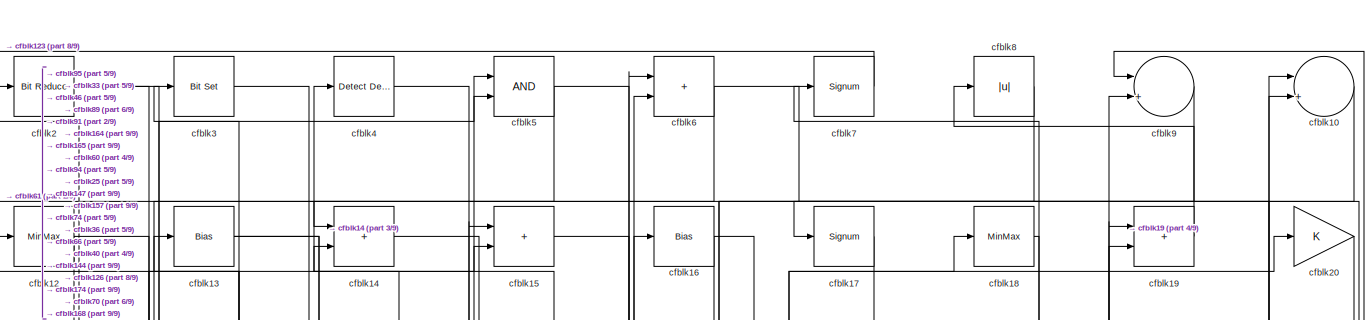
[diagram: root canvas - part 1/9, full width, top band]
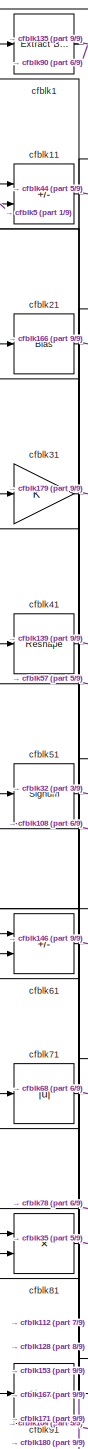
[diagram: root canvas - part 2/9, top left region]
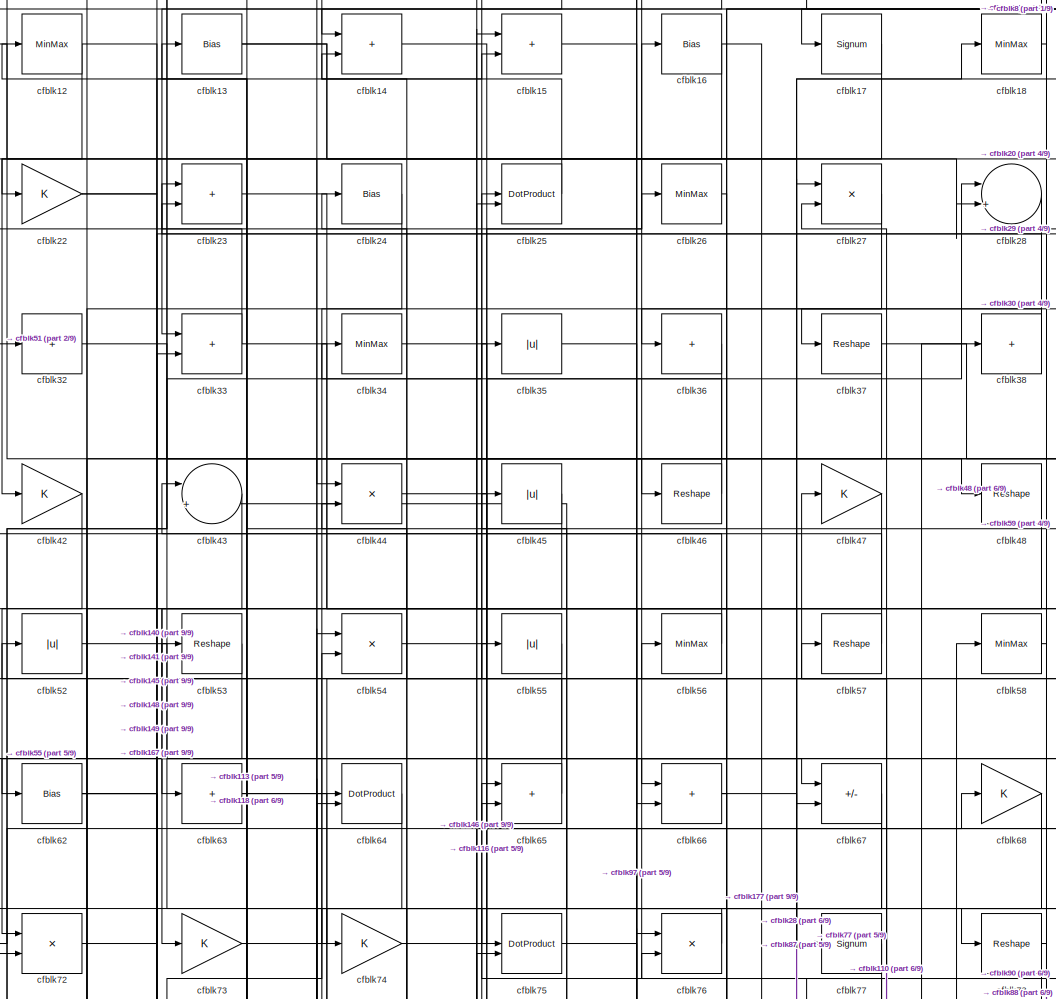
[diagram: root canvas - part 3/9, top center region]
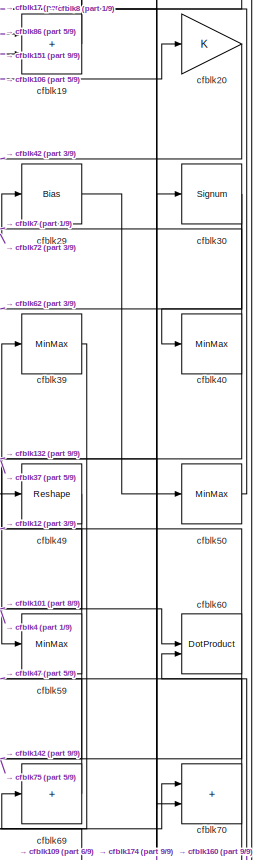
[diagram: root canvas - part 4/9, top right region]
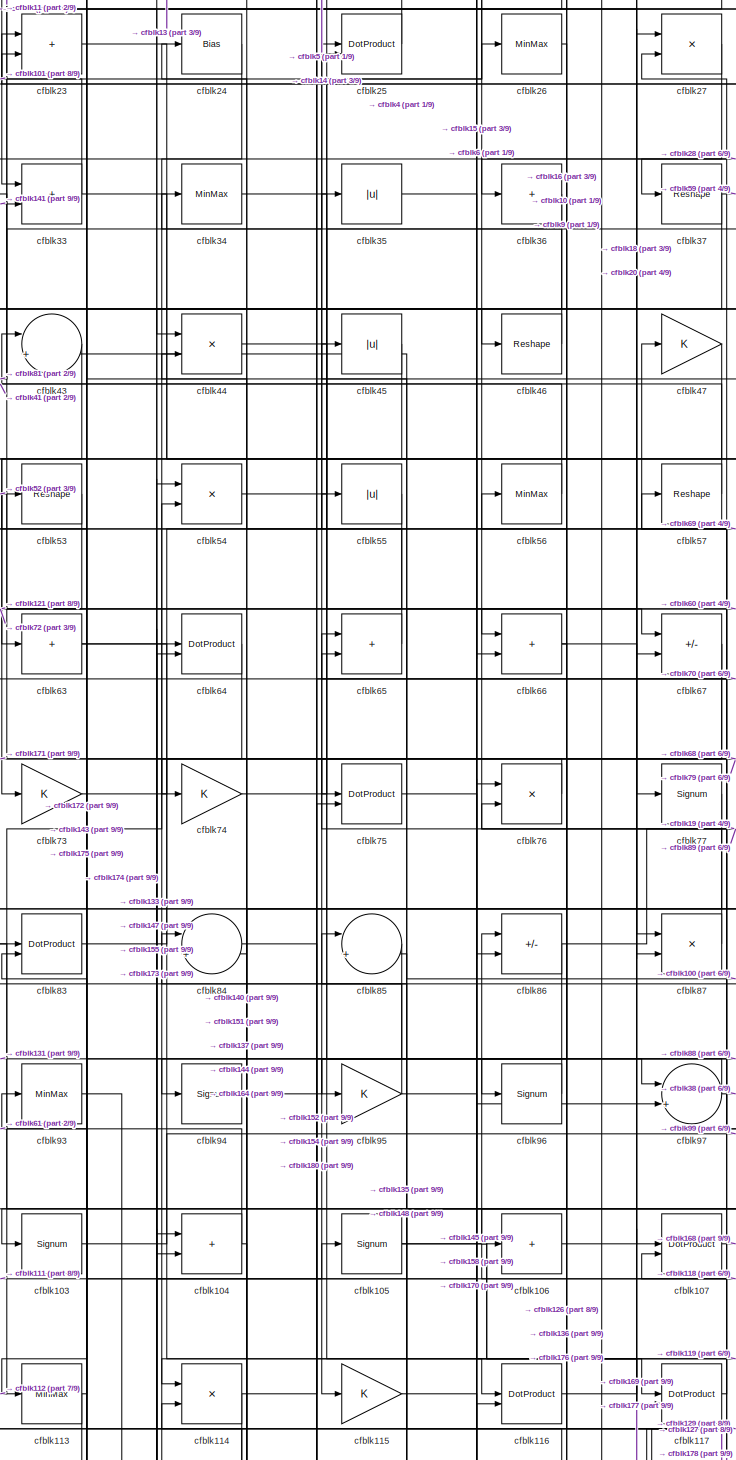
[diagram: root canvas - part 5/9, central region]
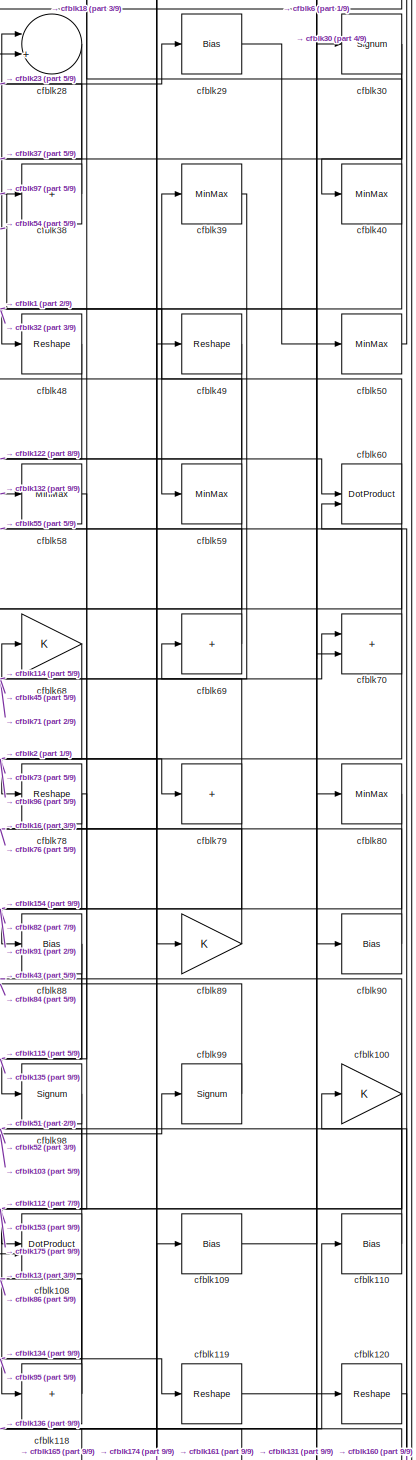
[diagram: root canvas - part 6/9, middle right region]
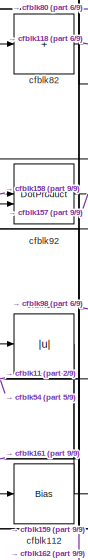
[diagram: root canvas - part 7/9, middle left region]
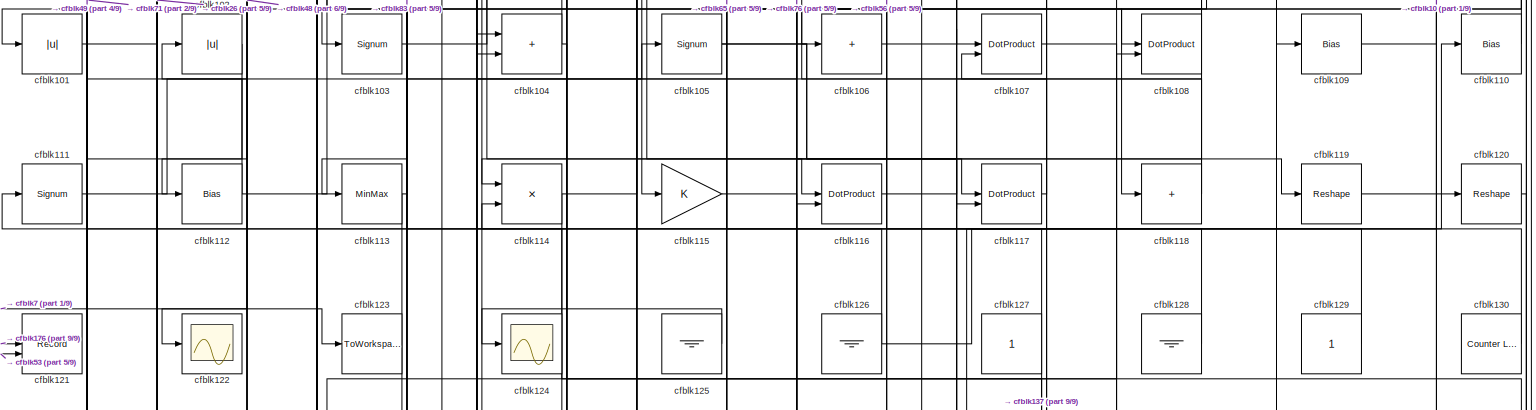
[diagram: root canvas - part 8/9, full width, middle band]
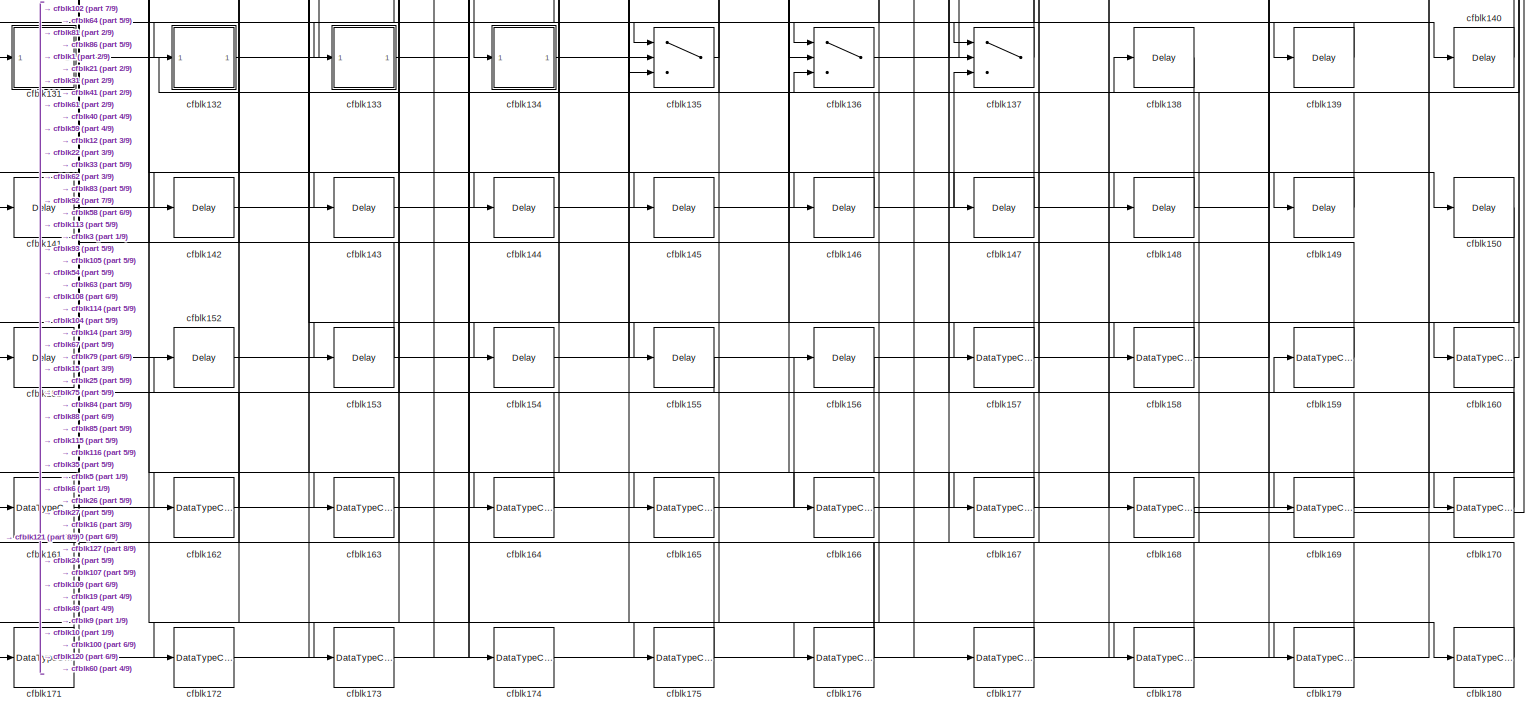
[diagram: root canvas - part 9/9, full width, bottom band]
MODEL slx_423c228bf753
KIND model
CONFIG AbsTol = auto
CONFIG EnableMultiTasking = off
CONFIG FixedStep = auto
CONFIG MaxStep = auto
CONFIG MinStep = auto
CONFIG RelTol = 1e-3
CONFIG SampleTimeConstraint = Unconstrained
CONFIG SolverName = VariableStepAuto
CONFIG StartTime = 0.0
CONFIG StopTime = 10.0
BLOCK [Reference] cfblk1  REF=simulink/Logic and Bit
Operations/Extract Bits
  LibrarySourceBlock = hdlsllib/Logic and Bit\nOperations/Extract Bits
  SourceBlock = simulink/Logic and Bit\nOperations/Extract Bits
  SourceType = Extract Bits
BLOCK [Sum] cfblk10
  Inputs = |++
BLOCK [Gain] cfblk100
BLOCK [Abs] cfblk101
  SaturateOnIntegerOverflow = off
BLOCK [Abs] cfblk102
  SaturateOnIntegerOverflow = off
BLOCK [Signum] cfblk103
BLOCK [Sum] cfblk104
  IconShape = rectangular
BLOCK [Signum] cfblk105
BLOCK [Sum] cfblk106
  IconShape = rectangular
  Inputs = +
BLOCK [DotProduct] cfblk107
  OutDataTypeStr = Inherit: Inherit via internal rule
BLOCK [DotProduct] cfblk108
  OutDataTypeStr = Inherit: Inherit via internal rule
BLOCK [Bias] cfblk109
  Bias = 0.0
  SaturateOnIntegerOverflow = off
BLOCK [Sum] cfblk11
  IconShape = rectangular
  Inputs = +-
BLOCK [Bias] cfblk110
  Bias = 0.0
  SaturateOnIntegerOverflow = off
BLOCK [Signum] cfblk111
BLOCK [Bias] cfblk112
  Bias = 0.0
  SaturateOnIntegerOverflow = off
BLOCK [MinMax] cfblk113
BLOCK [Product] cfblk114
  Inputs = */
  RndMeth = Zero
  SaturateOnIntegerOverflow = on
BLOCK [Gain] cfblk115
BLOCK [DotProduct] cfblk116
  OutDataTypeStr = Inherit: Inherit via internal rule
BLOCK [DotProduct] cfblk117
  OutDataTypeStr = Inherit: Inherit via internal rule
BLOCK [Sum] cfblk118
  IconShape = rectangular
  Inputs = +
BLOCK [Reshape] cfblk119
BLOCK [MinMax] cfblk12
BLOCK [Reshape] cfblk120
BLOCK [Record] cfblk121
  CompatibilityTag = XY
  FileSettingsInternal = {"entries":[{"content":{"excelSettings":{"content":{},"type":"Streamout.ExcelSettings"}},"type":"Streamout.FileSettingStorage","uuid":""}],"packageUris":["http:\/\/schema.mathworks.com\/mf0\/streamout_blocks\/R2020a"],"version":"1.0"}
  Layout = [1 1]
  SignalsInternal = {"entries":[{"content":{"signals":[{"content":{"blockPath":[],"dimensions":[1],"domain":"","lineColor":"#a2142f","plots":[1],"port":1,"signalID":1564,"signalName":"XY Graph:1"},"type":"RecordBlkView.Signal","uuid":""},{"content":{"blockPath":[],"dimensions":[1],"domain":"","lineColor":"#139fff","plots":[1],"port":2,"signalID":1567,"signalName":"XY Graph:2"},"type":"RecordBlkView.Signal","uuid":""}...<+146ch>
  VisualizationBindings = {"xyplotplugin":{"info":[{"series":[{"bindingParametersList":[{"parameter":"X-Axis","signalID":1564,"signalName":"XY Graph:1"},{"parameter":"Y-Axis","signalID":1567,"signalName":"XY Graph:2"}],"seriesID":27336}],"subplotID":1}]}}
  st = -1
BLOCK [Scope] cfblk122
  Floating = off
  NumInputPorts = 1
  ScopeSpecificationString = Simulink.scopes.TimeScopeBlockCfg('CurrentConfiguration', extmgr.ConfigurationSet(extmgr.Configuration('Core','General UI',true),extmgr.Configuration('Core','Source UI',true),extmgr.Configuration('Sources','WiredSimulink',true,'DataLoggingVariableName','ScopeData2','DataLoggingSaveFormat','Array','DataLoggingLimitDataPoints',true,'DataLoggingDecimation','1'),extmgr.Configuration('Visuals','Time Do...<+868ch>
BLOCK [ToWorkspace] cfblk123
  MaxDataPoints = inf
  SampleTime = -1
  SaveFormat = Timeseries
  VariableName = simout
BLOCK [Scope] cfblk124
  Floating = off
  NumInputPorts = 1
  ScopeSpecificationString = Simulink.scopes.TimeScopeBlockCfg('CurrentConfiguration', extmgr.ConfigurationSet(extmgr.Configuration('Core','General UI',true),extmgr.Configuration('Core','Source UI',true),extmgr.Configuration('Sources','WiredSimulink',true,'DataLoggingVariableName','ScopeData2','DataLoggingSaveFormat','Array','DataLoggingLimitDataPoints',true,'DataLoggingDecimation','1'),extmgr.Configuration('Visuals','Time Do...<+868ch>
BLOCK [Ground] cfblk125
BLOCK [Ground] cfblk126
BLOCK [Constant] cfblk127
  SampleTime = -1
BLOCK [Ground] cfblk128
BLOCK [Constant] cfblk129
  SampleTime = -1
BLOCK [Bias] cfblk13
  Bias = 0.0
  SaturateOnIntegerOverflow = off
BLOCK [Reference] cfblk130  REF=hdlsllib/Sources/Counter
Limited
  SourceBlock = hdlsllib/Sources/Counter\nLimited
  SourceType = Counter Limited
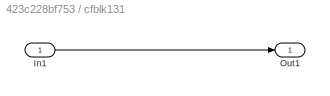
BLOCK [SubSystem] cfblk131
  LibrarySourceBlock = hdlsllib/Ports &\nSubsystems/Subsystem
BLOCK [Inport] cfblk131/In1
BLOCK [Outport] cfblk131/Out1
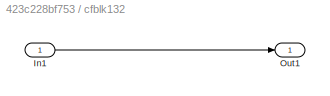
BLOCK [SubSystem] cfblk132
  LibrarySourceBlock = hdlsllib/Ports &\nSubsystems/Subsystem
BLOCK [Inport] cfblk132/In1
BLOCK [Outport] cfblk132/Out1
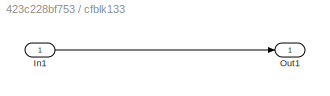
BLOCK [SubSystem] cfblk133
  LibrarySourceBlock = hdlsllib/Ports &\nSubsystems/Subsystem
BLOCK [Inport] cfblk133/In1
BLOCK [Outport] cfblk133/Out1
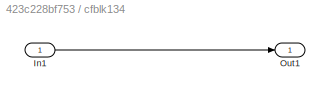
BLOCK [SubSystem] cfblk134
  LibrarySourceBlock = hdlsllib/Ports &\nSubsystems/Subsystem
BLOCK [Inport] cfblk134/In1
BLOCK [Outport] cfblk134/Out1
BLOCK [Switch] cfblk135
  InputSameDT = off
  SaturateOnIntegerOverflow = off
BLOCK [Switch] cfblk136
  InputSameDT = off
  SaturateOnIntegerOverflow = off
BLOCK [Switch] cfblk137
  InputSameDT = off
  SaturateOnIntegerOverflow = off
BLOCK [Delay] cfblk138
  InputPortMap = u0
  SampleTime = 1
BLOCK [Delay] cfblk139
  InputPortMap = u0
  SampleTime = 1
BLOCK [Sum] cfblk14
  IconShape = rectangular
BLOCK [Delay] cfblk140
  InputPortMap = u0
  SampleTime = 1
BLOCK [Delay] cfblk141
  InputPortMap = u0
  SampleTime = 1
BLOCK [Delay] cfblk142
  InputPortMap = u0
  SampleTime = 1
BLOCK [Delay] cfblk143
  InputPortMap = u0
  SampleTime = 1
BLOCK [Delay] cfblk144
  InputPortMap = u0
  SampleTime = 1
BLOCK [Delay] cfblk145
  InputPortMap = u0
  SampleTime = 1
BLOCK [Delay] cfblk146
  InputPortMap = u0
  SampleTime = 1
BLOCK [Delay] cfblk147
  InputPortMap = u0
  SampleTime = 1
BLOCK [Delay] cfblk148
  InputPortMap = u0
  SampleTime = 1
BLOCK [Delay] cfblk149
  InputPortMap = u0
  SampleTime = 1
BLOCK [Sum] cfblk15
  IconShape = rectangular
BLOCK [Delay] cfblk150
  InputPortMap = u0
  SampleTime = 1
BLOCK [Delay] cfblk151
  InputPortMap = u0
  SampleTime = 1
BLOCK [Delay] cfblk152
  InputPortMap = u0
  SampleTime = 1
BLOCK [Delay] cfblk153
  InputPortMap = u0
  SampleTime = 1
BLOCK [Delay] cfblk154
  InputPortMap = u0
  SampleTime = 1
BLOCK [Delay] cfblk155
  InputPortMap = u0
  SampleTime = 1
BLOCK [Delay] cfblk156
  InputPortMap = u0
  SampleTime = 1
BLOCK [DataTypeConversion] cfblk157
  OutDataTypeStr = uint8
  RndMeth = Floor
  SaturateOnIntegerOverflow = off
BLOCK [DataTypeConversion] cfblk158
  OutDataTypeStr = uint8
  RndMeth = Floor
  SaturateOnIntegerOverflow = off
BLOCK [DataTypeConversion] cfblk159
  OutDataTypeStr = uint8
  RndMeth = Floor
  SaturateOnIntegerOverflow = off
BLOCK [Bias] cfblk16
  Bias = 0.0
  SaturateOnIntegerOverflow = off
BLOCK [DataTypeConversion] cfblk160
  RndMeth = Floor
  SaturateOnIntegerOverflow = off
BLOCK [DataTypeConversion] cfblk161
  OutDataTypeStr = uint8
  RndMeth = Floor
  SaturateOnIntegerOverflow = off
BLOCK [DataTypeConversion] cfblk162
  OutDataTypeStr = uint8
  RndMeth = Floor
  SaturateOnIntegerOverflow = off
BLOCK [DataTypeConversion] cfblk163
  OutDataTypeStr = uint8
  RndMeth = Floor
  SaturateOnIntegerOverflow = off
BLOCK [DataTypeConversion] cfblk164
  OutDataTypeStr = boolean
  RndMeth = Floor
  SaturateOnIntegerOverflow = off
BLOCK [DataTypeConversion] cfblk165
  OutDataTypeStr = uint8
  RndMeth = Floor
  SaturateOnIntegerOverflow = off
BLOCK [DataTypeConversion] cfblk166
  OutDataTypeStr = uint8
  RndMeth = Floor
  SaturateOnIntegerOverflow = off
BLOCK [DataTypeConversion] cfblk167
  OutDataTypeStr = uint8
  RndMeth = Floor
  SaturateOnIntegerOverflow = off
BLOCK [DataTypeConversion] cfblk168
  OutDataTypeStr = uint8
  RndMeth = Floor
  SaturateOnIntegerOverflow = off
BLOCK [DataTypeConversion] cfblk169
  OutDataTypeStr = uint8
  RndMeth = Floor
  SaturateOnIntegerOverflow = off
BLOCK [Signum] cfblk17
BLOCK [DataTypeConversion] cfblk170
  OutDataTypeStr = uint8
  RndMeth = Floor
  SaturateOnIntegerOverflow = off
BLOCK [DataTypeConversion] cfblk171
  RndMeth = Floor
  SaturateOnIntegerOverflow = off
BLOCK [DataTypeConversion] cfblk172
  OutDataTypeStr = uint8
  RndMeth = Floor
  SaturateOnIntegerOverflow = off
BLOCK [DataTypeConversion] cfblk173
  OutDataTypeStr = uint8
  RndMeth = Floor
  SaturateOnIntegerOverflow = off
BLOCK [DataTypeConversion] cfblk174
  RndMeth = Floor
  SaturateOnIntegerOverflow = off
BLOCK [DataTypeConversion] cfblk175
  OutDataTypeStr = uint8
  RndMeth = Floor
  SaturateOnIntegerOverflow = off
BLOCK [DataTypeConversion] cfblk176
  RndMeth = Floor
  SaturateOnIntegerOverflow = off
BLOCK [DataTypeConversion] cfblk177
  OutDataTypeStr = uint8
  RndMeth = Floor
  SaturateOnIntegerOverflow = off
BLOCK [DataTypeConversion] cfblk178
  OutDataTypeStr = uint8
  RndMeth = Floor
  SaturateOnIntegerOverflow = off
BLOCK [DataTypeConversion] cfblk179
  OutDataTypeStr = uint8
  RndMeth = Floor
  SaturateOnIntegerOverflow = off
BLOCK [MinMax] cfblk18
BLOCK [DataTypeConversion] cfblk180
  OutDataTypeStr = uint8
  RndMeth = Floor
  SaturateOnIntegerOverflow = off
BLOCK [Sum] cfblk19
  IconShape = rectangular
BLOCK [Reference] cfblk2  REF=hdlsllib/Logic and Bit
Operations/Bit Reduce
  SourceBlock = hdlsllib/Logic and Bit\nOperations/Bit Reduce
  SourceType = Bit Reduce
BLOCK [Gain] cfblk20
BLOCK [Bias] cfblk21
  Bias = 0.0
  SaturateOnIntegerOverflow = off
BLOCK [Gain] cfblk22
BLOCK [Sum] cfblk23
  IconShape = rectangular
BLOCK [Bias] cfblk24
  Bias = 0.0
  SaturateOnIntegerOverflow = off
BLOCK [DotProduct] cfblk25
  OutDataTypeStr = Inherit: Inherit via internal rule
BLOCK [MinMax] cfblk26
BLOCK [Product] cfblk27
  Inputs = */
  RndMeth = Zero
  SaturateOnIntegerOverflow = on
BLOCK [Sum] cfblk28
  Inputs = |++
BLOCK [Bias] cfblk29
  Bias = 0.0
  SaturateOnIntegerOverflow = off
BLOCK [Reference] cfblk3  REF=simulink/Logic and Bit
Operations/Bit Set
  LibrarySourceBlock = hdlsllib/Logic and Bit\nOperations/Bit Set
  SourceBlock = simulink/Logic and Bit\nOperations/Bit Set
  SourceType = Bit Set
BLOCK [Signum] cfblk30
BLOCK [Gain] cfblk31
BLOCK [Sum] cfblk32
  IconShape = rectangular
  Inputs = +
BLOCK [Sum] cfblk33
  IconShape = rectangular
BLOCK [MinMax] cfblk34
BLOCK [Abs] cfblk35
  SaturateOnIntegerOverflow = off
BLOCK [Sum] cfblk36
  IconShape = rectangular
  Inputs = +
BLOCK [Reshape] cfblk37
BLOCK [Sum] cfblk38
  IconShape = rectangular
  Inputs = +
BLOCK [MinMax] cfblk39
BLOCK [Reference] cfblk4  REF=simulink/Logic and Bit
Operations/Detect
Decrease
  LibrarySourceBlock = hdlsllib/Logic and Bit\nOperations/Detect\nDecrease
  SourceBlock = simulink/Logic and Bit\nOperations/Detect\nDecrease
  SourceType = Detect Decrease
BLOCK [MinMax] cfblk40
BLOCK [Reshape] cfblk41
BLOCK [Gain] cfblk42
BLOCK [Sum] cfblk43
  Inputs = |++
BLOCK [Product] cfblk44
  Inputs = */
  RndMeth = Zero
  SaturateOnIntegerOverflow = on
BLOCK [Abs] cfblk45
  SaturateOnIntegerOverflow = off
BLOCK [Reshape] cfblk46
BLOCK [Gain] cfblk47
BLOCK [Reshape] cfblk48
BLOCK [Reshape] cfblk49
BLOCK [Logic] cfblk5
  AllPortsSameDT = off
  OutDataTypeStr = boolean
BLOCK [MinMax] cfblk50
BLOCK [Signum] cfblk51
BLOCK [Abs] cfblk52
  SaturateOnIntegerOverflow = off
BLOCK [Reshape] cfblk53
BLOCK [Product] cfblk54
  Inputs = */
  RndMeth = Zero
  SaturateOnIntegerOverflow = on
BLOCK [Abs] cfblk55
  SaturateOnIntegerOverflow = off
BLOCK [MinMax] cfblk56
BLOCK [Reshape] cfblk57
BLOCK [MinMax] cfblk58
BLOCK [MinMax] cfblk59
BLOCK [Sum] cfblk6
  IconShape = rectangular
BLOCK [DotProduct] cfblk60
  OutDataTypeStr = Inherit: Inherit via internal rule
BLOCK [Sum] cfblk61
  IconShape = rectangular
  Inputs = +-
BLOCK [Bias] cfblk62
  Bias = 0.0
  SaturateOnIntegerOverflow = off
BLOCK [Sum] cfblk63
  IconShape = rectangular
  Inputs = +
BLOCK [DotProduct] cfblk64
  OutDataTypeStr = Inherit: Inherit via internal rule
BLOCK [Sum] cfblk65
  IconShape = rectangular
BLOCK [Sum] cfblk66
  IconShape = rectangular
BLOCK [Sum] cfblk67
  IconShape = rectangular
  Inputs = +-
BLOCK [Gain] cfblk68
BLOCK [Sum] cfblk69
  IconShape = rectangular
  Inputs = +
BLOCK [Signum] cfblk7
BLOCK [Sum] cfblk70
  IconShape = rectangular
BLOCK [Abs] cfblk71
  SaturateOnIntegerOverflow = off
BLOCK [Product] cfblk72
  Inputs = */
  RndMeth = Zero
  SaturateOnIntegerOverflow = on
BLOCK [Gain] cfblk73
BLOCK [Gain] cfblk74
BLOCK [DotProduct] cfblk75
  OutDataTypeStr = Inherit: Inherit via internal rule
BLOCK [Product] cfblk76
  Inputs = */
  RndMeth = Zero
  SaturateOnIntegerOverflow = on
BLOCK [Signum] cfblk77
BLOCK [Reshape] cfblk78
BLOCK [Sum] cfblk79
  IconShape = rectangular
  Inputs = +
BLOCK [Abs] cfblk8
  SaturateOnIntegerOverflow = off
BLOCK [MinMax] cfblk80
BLOCK [Product] cfblk81
  Inputs = */
  RndMeth = Zero
  SaturateOnIntegerOverflow = on
BLOCK [Sum] cfblk82
  IconShape = rectangular
  Inputs = +
BLOCK [DotProduct] cfblk83
  OutDataTypeStr = Inherit: Inherit via internal rule
BLOCK [Sum] cfblk84
  Inputs = |++
BLOCK [Sum] cfblk85
  Inputs = |++
BLOCK [Sum] cfblk86
  IconShape = rectangular
  Inputs = +-
BLOCK [Product] cfblk87
  Inputs = */
  RndMeth = Zero
  SaturateOnIntegerOverflow = on
BLOCK [Bias] cfblk88
  Bias = 0.0
  SaturateOnIntegerOverflow = off
BLOCK [Gain] cfblk89
BLOCK [Sum] cfblk9
  Inputs = |++
BLOCK [Bias] cfblk90
  Bias = 0.0
  SaturateOnIntegerOverflow = off
BLOCK [Signum] cfblk91
BLOCK [DotProduct] cfblk92
  OutDataTypeStr = Inherit: Inherit via internal rule
BLOCK [MinMax] cfblk93
BLOCK [Signum] cfblk94
BLOCK [Gain] cfblk95
BLOCK [Signum] cfblk96
BLOCK [Sum] cfblk97
  Inputs = |++
BLOCK [Signum] cfblk98
BLOCK [Signum] cfblk99
NET cfblk100:1 -> cfblk153:1, cfblk175:1, cfblk43:2
LINE cfblk101:1 -> cfblk26:1
LINE cfblk102:1 -> cfblk161:1
LINE cfblk103:1 -> cfblk99:1
NET cfblk104:1 -> cfblk164:1, cfblk61:2
NET cfblk105:1 -> cfblk117:2, cfblk137:2
LINE cfblk106:1 -> cfblk20:1
LINE cfblk107:1 -> cfblk168:1
NET cfblk108:1 -> cfblk134:1, cfblk51:1
LINE cfblk109:1 -> cfblk30:1
LINE cfblk10:1 -> cfblk36:1
LINE cfblk110:1 -> cfblk52:1
LINE cfblk111:1 -> cfblk76:1
NET cfblk112:1 -> cfblk11:1, cfblk54:2
NET cfblk113:1 -> cfblk172:1, cfblk53:1
NET cfblk114:1 -> cfblk151:1, cfblk70:1
LINE cfblk115:1 -> cfblk136:2
LINE cfblk116:1 -> cfblk18:1
LINE cfblk117:1 -> cfblk57:1
NET cfblk118:1 -> cfblk13:1, cfblk86:1
LINE cfblk119:1 -> cfblk80:1
LINE cfblk11:1 -> cfblk44:1
LINE cfblk120:1 -> cfblk160:1
LINE cfblk125:1 -> cfblk124:1
NET cfblk126:1 -> cfblk10:2, cfblk65:2
NET cfblk127:1 -> cfblk137:1, cfblk83:2
LINE cfblk128:1 -> cfblk71:1
LINE cfblk129:1 -> cfblk56:1
NET cfblk12:1 -> cfblk140:1, cfblk141:1
LINE cfblk130:1 -> cfblk111:1
LINE cfblk131/In1:1 -> cfblk131/Out1:1
LINE cfblk131:1 -> cfblk100:1
LINE cfblk132/In1:1 -> cfblk132/Out1:1
LINE cfblk132:1 -> cfblk58:1
LINE cfblk133/In1:1 -> cfblk133/Out1:1
NET cfblk133:1 -> cfblk105:1, cfblk178:1
LINE cfblk134/In1:1 -> cfblk134/Out1:1
LINE cfblk134:1 -> cfblk150:1
LINE cfblk135:1 -> cfblk85:1
LINE cfblk136:1 -> cfblk110:1
LINE cfblk137:1 -> cfblk24:1
LINE cfblk138:1 -> cfblk136:3
LINE cfblk139:1 -> cfblk135:1
NET cfblk13:1 -> cfblk28:2, cfblk87:2
LINE cfblk140:1 -> cfblk114:2
LINE cfblk141:1 -> cfblk33:2
LINE cfblk142:1 -> cfblk137:3
LINE cfblk143:1 -> cfblk54:1
LINE cfblk144:1 -> cfblk9:2
LINE cfblk145:1 -> cfblk116:2
LINE cfblk146:1 -> cfblk15:1
LINE cfblk147:1 -> cfblk104:1
LINE cfblk148:1 -> cfblk85:2
LINE cfblk149:1 -> cfblk14:2
LINE cfblk14:1 -> cfblk116:1
LINE cfblk150:1 -> cfblk173:1
LINE cfblk151:1 -> cfblk19:2
LINE cfblk152:1 -> cfblk75:2
LINE cfblk153:1 -> cfblk1:1
LINE cfblk154:1 -> cfblk25:2
LINE cfblk155:1 -> cfblk159:1
LINE cfblk156:1 -> cfblk162:1
LINE cfblk157:1 -> cfblk6:1
LINE cfblk158:1 -> cfblk92:1
LINE cfblk159:1 -> cfblk92:2
LINE cfblk15:1 -> cfblk97:2
NET cfblk160:1 -> cfblk163:1, cfblk60:2
LINE cfblk161:1 -> cfblk120:1
LINE cfblk162:1 -> cfblk102:1
LINE cfblk163:1 -> cfblk156:1
LINE cfblk164:1 -> cfblk3:1
LINE cfblk165:1 -> cfblk109:1
LINE cfblk166:1 -> cfblk169:1
LINE cfblk167:1 -> cfblk21:1
LINE cfblk168:1 -> cfblk9:1
LINE cfblk169:1 -> cfblk107:1
NET cfblk16:1 -> cfblk113:1, cfblk177:1
LINE cfblk170:1 -> cfblk107:2
NET cfblk171:1 -> cfblk81:1, cfblk81:2, cfblk83:1
LINE cfblk172:1 -> cfblk64:1
LINE cfblk173:1 -> cfblk64:2
NET cfblk174:1 -> cfblk108:2, cfblk10:1, cfblk49:1
LINE cfblk175:1 -> cfblk93:1
NET cfblk176:1 -> cfblk121:1, cfblk152:1
LINE cfblk177:1 -> cfblk27:1
LINE cfblk178:1 -> cfblk27:2
LINE cfblk179:1 -> cfblk138:1
LINE cfblk17:1 -> cfblk22:1
LINE cfblk180:1 -> cfblk31:1
LINE cfblk18:1 -> cfblk88:1
LINE cfblk19:1 -> cfblk8:1
NET cfblk1:1 -> cfblk135:3, cfblk90:1
LINE cfblk20:1 -> cfblk42:1
LINE cfblk21:1 -> cfblk166:1
NET cfblk22:1 -> cfblk145:1, cfblk15:2
LINE cfblk23:1 -> cfblk67:2
LINE cfblk24:1 -> cfblk114:1
LINE cfblk25:1 -> cfblk4:1
LINE cfblk26:1 -> cfblk136:1
LINE cfblk27:1 -> cfblk176:1
LINE cfblk28:1 -> cfblk37:1
LINE cfblk29:1 -> cfblk50:1
NET cfblk2:1 -> cfblk46:1, cfblk89:1
NET cfblk30:1 -> cfblk40:1, cfblk62:1
LINE cfblk31:1 -> cfblk179:1
LINE cfblk32:1 -> cfblk48:1
NET cfblk33:1 -> cfblk23:2, cfblk86:2
LINE cfblk34:1 -> cfblk97:1
LINE cfblk35:1 -> cfblk170:1
LINE cfblk36:1 -> cfblk103:1
NET cfblk37:1 -> cfblk104:2, cfblk59:1
LINE cfblk38:1 -> cfblk23:1
LINE cfblk39:1 -> cfblk69:1
LINE cfblk3:1 -> cfblk165:1
NET cfblk40:1 -> cfblk132:1, cfblk7:1
LINE cfblk41:1 -> cfblk139:1
LINE cfblk42:1 -> cfblk72:1
LINE cfblk43:1 -> cfblk73:1
LINE cfblk44:1 -> cfblk67:1
LINE cfblk45:1 -> cfblk63:1
LINE cfblk46:1 -> cfblk34:1
LINE cfblk47:1 -> cfblk66:2
LINE cfblk48:1 -> cfblk122:1
LINE cfblk49:1 -> cfblk101:1
LINE cfblk4:1 -> cfblk60:1
LINE cfblk50:1 -> cfblk17:1
LINE cfblk51:1 -> cfblk32:1
LINE cfblk52:1 -> cfblk77:1
LINE cfblk53:1 -> cfblk121:2
LINE cfblk54:1 -> cfblk28:1
LINE cfblk55:1 -> cfblk72:2
LINE cfblk56:1 -> cfblk43:1
LINE cfblk57:1 -> cfblk41:1
LINE cfblk58:1 -> cfblk78:1
NET cfblk59:1 -> cfblk12:1, cfblk142:1
NET cfblk5:1 -> cfblk147:1, cfblk61:1
NET cfblk60:1 -> cfblk39:1, cfblk75:1
LINE cfblk61:1 -> cfblk146:1
NET cfblk62:1 -> cfblk148:1, cfblk149:1, cfblk167:1
NET cfblk63:1 -> cfblk117:1, cfblk155:1
LINE cfblk64:1 -> cfblk171:1
LINE cfblk65:1 -> cfblk44:2
NET cfblk66:1 -> cfblk106:1, cfblk87:1
NET cfblk67:1 -> cfblk143:1, cfblk144:1
LINE cfblk68:1 -> cfblk96:1
LINE cfblk69:1 -> cfblk47:1
NET cfblk6:1 -> cfblk33:1, cfblk70:2
NET cfblk70:1 -> cfblk55:1, cfblk98:1
LINE cfblk71:1 -> cfblk68:1
LINE cfblk72:1 -> cfblk29:1
LINE cfblk73:1 -> cfblk79:1
LINE cfblk74:1 -> cfblk6:2
LINE cfblk75:1 -> cfblk158:1
LINE cfblk76:1 -> cfblk74:1
LINE cfblk77:1 -> cfblk84:2
NET cfblk78:1 -> cfblk108:1, cfblk91:1
NET cfblk79:1 -> cfblk154:1, cfblk45:1
LINE cfblk7:1 -> cfblk123:1
LINE cfblk80:1 -> cfblk82:1
LINE cfblk81:1 -> cfblk35:1
LINE cfblk82:1 -> cfblk118:1
LINE cfblk83:1 -> cfblk25:1
LINE cfblk84:1 -> cfblk180:1
LINE cfblk85:1 -> cfblk133:1
NET cfblk86:1 -> cfblk131:1, cfblk19:1
LINE cfblk87:1 -> cfblk65:1
NET cfblk88:1 -> cfblk115:1, cfblk135:2
LINE cfblk89:1 -> cfblk76:2
LINE cfblk8:1 -> cfblk14:1
LINE cfblk90:1 -> cfblk16:1
NET cfblk91:1 -> cfblk11:2, cfblk5:2
LINE cfblk92:1 -> cfblk157:1
LINE cfblk93:1 -> cfblk174:1
LINE cfblk94:1 -> cfblk5:1
NET cfblk95:1 -> cfblk119:1, cfblk2:1
LINE cfblk96:1 -> cfblk95:1
NET cfblk97:1 -> cfblk38:1, cfblk94:1
LINE cfblk98:1 -> cfblk112:1
LINE cfblk99:1 -> cfblk84:1
LINE cfblk9:1 -> cfblk66:1
note: NET lines group one-source signal fan-out (src -> all destinations, sorted); 1:1 wires keep LINE
